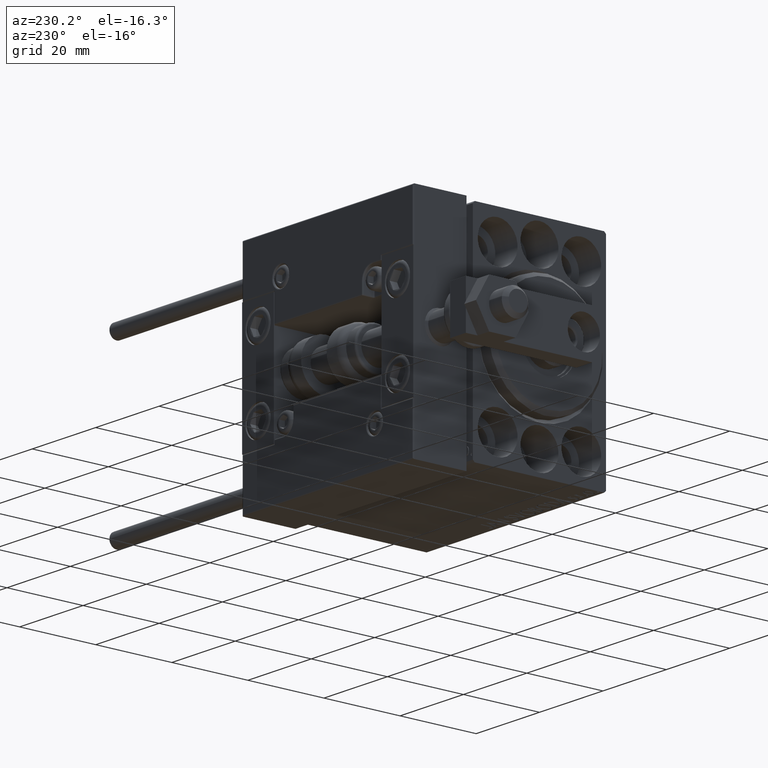
[diagram: clean part render]
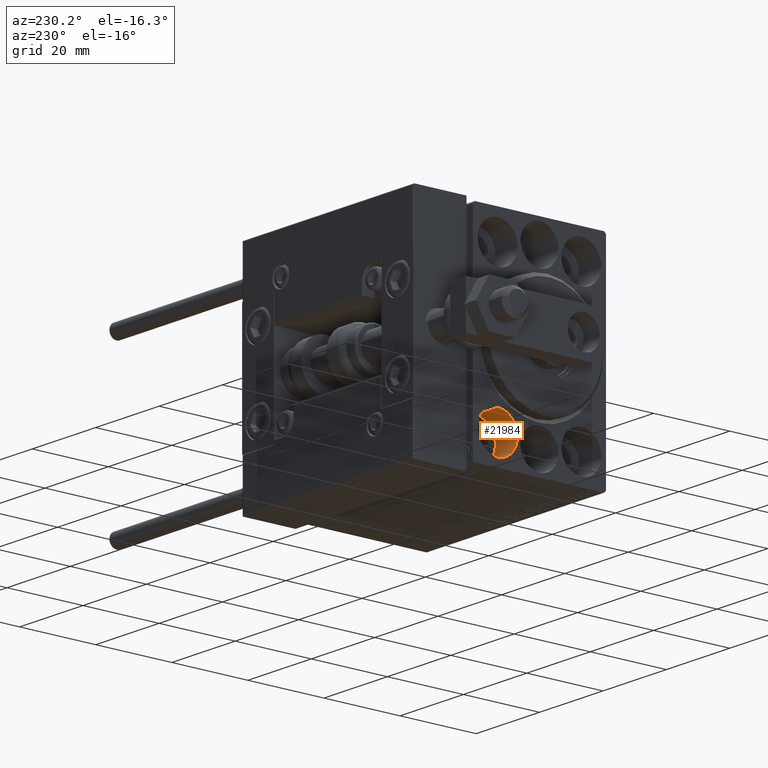
[diagram: same view with one face highlighted and labeled with its STEP entity id]
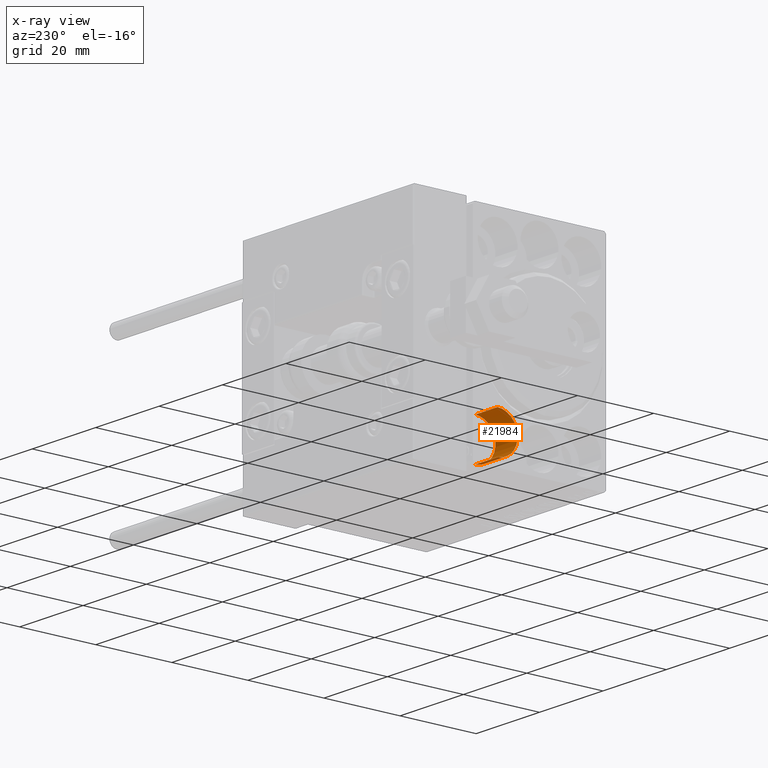
[diagram: x-ray of the same camera — body ghosted, the highlighted face saturated]
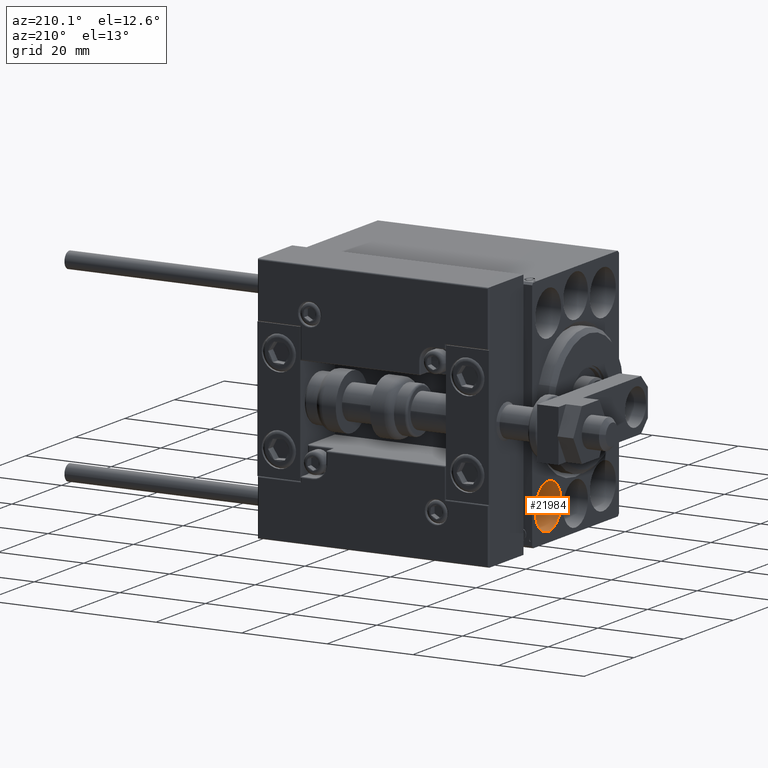
[diagram: same view with one face highlighted and labeled with its STEP entity id]
A machine part, auxiliary view. The second image highlights one B-rep face of the part: STEP entity #21984.
The next image is the same camera in x-ray: the body ghosted, the highlighted face saturated — about 0% of this face is hidden behind the body in this view.
A second angle (auxiliary view) of the same face is appended — the face is thin or edge-on in the first view.
In plain terms, the highlighted cylindrical surface (edge-blend (fillet) strip) has radius 5.25 mm, axis along (-1, -0, -0).
Its self-contained STEP definition (entity closure, byte-faithful):
#1010 = CARTESIAN_POINT ( 'NONE',  ( 7.000000000000000000, 11.00000000000000355, -20.00000000000000000 ) ) ;
#6427 = CARTESIAN_POINT ( 'NONE',  ( 0.000000000000000000, 11.00000000000000355, -20.00000000000000000 ) ) ;
#6558 = EDGE_CURVE ( 'NONE', #49454, #34078, #38046, .T. ) ;
#11633 = ORIENTED_EDGE ( 'NONE', *, *, #28402, .T. ) ;
#12448 = DIRECTION ( 'NONE',  ( -1.000000000000000000, -0.000000000000000000, -0.000000000000000000 ) ) ;
#12738 = VECTOR ( 'NONE', #20463, 1000.000000000000000 ) ;
#13074 = VERTEX_POINT ( 'NONE', #39624 ) ;
#14294 = DIRECTION ( 'NONE',  ( 0.000000000000000000, 0.000000000000000000, 1.000000000000000000 ) ) ;
#14931 = EDGE_LOOP ( 'NONE', ( #20461, #11633, #17421, #44703 ) ) ;
#14967 = CARTESIAN_POINT ( 'NONE',  ( 0.000000000000000000, 11.00000000000000355, -14.75000000000000000 ) ) ;
#16191 = AXIS2_PLACEMENT_3D ( 'NONE', #6427, #29020, #14294 ) ;
#16500 = FACE_OUTER_BOUND ( 'NONE', #14931, .T. ) ;
#17421 = ORIENTED_EDGE ( 'NONE', *, *, #6558, .T. ) ;
#20461 = ORIENTED_EDGE ( 'NONE', *, *, #42262, .F. ) ;
#20463 = DIRECTION ( 'NONE',  ( -1.000000000000000000, -0.000000000000000000, -0.000000000000000000 ) ) ;
#21297 = DIRECTION ( 'NONE',  ( 0.000000000000000000, 0.000000000000000000, 1.000000000000000000 ) ) ;
#21984 = ADVANCED_FACE ( 'NONE', ( #16500 ), #43357, .F. ) ;
#22060 = DIRECTION ( 'NONE',  ( -1.000000000000000000, -0.000000000000000000, -0.000000000000000000 ) ) ;
#28078 = CARTESIAN_POINT ( 'NONE',  ( 7.000000000000000000, 11.00000000000000355, -25.25000000000000000 ) ) ;
#28099 = CIRCLE ( 'NONE', #43459, 5.250000000000000888 ) ;
#28402 = EDGE_CURVE ( 'NONE', #43811, #49454, #39481, .T. ) ;
#28930 = CARTESIAN_POINT ( 'NONE',  ( 7.000000000000000000, 11.00000000000000355, -14.75000000000000000 ) ) ;
#29020 = DIRECTION ( 'NONE',  ( -1.000000000000000000, 0.000000000000000000, 0.000000000000000000 ) ) ;
#34078 = VERTEX_POINT ( 'NONE', #14967 ) ;
#36032 = CARTESIAN_POINT ( 'NONE',  ( 7.000000000000000000, 11.00000000000000355, -20.00000000000000000 ) ) ;
#38046 = CIRCLE ( 'NONE', #16191, 5.250000000000000888 ) ;
#38753 = VECTOR ( 'NONE', #22060, 1000.000000000000000 ) ;
#39481 = LINE ( 'NONE', #28078, #12738 ) ;
#39624 = CARTESIAN_POINT ( 'NONE',  ( 7.000000000000000000, 11.00000000000000355, -14.75000000000000000 ) ) ;
#39830 = DIRECTION ( 'NONE',  ( -1.000000000000000000, 0.000000000000000000, 0.000000000000000000 ) ) ;
#42262 = EDGE_CURVE ( 'NONE', #43811, #13074, #28099, .T. ) ;
#43357 = CYLINDRICAL_SURFACE ( 'NONE', #44860, 5.250000000000000888 ) ;
#43459 = AXIS2_PLACEMENT_3D ( 'NONE', #36032, #39830, #47171 ) ;
#43811 = VERTEX_POINT ( 'NONE', #46556 ) ;
#44703 = ORIENTED_EDGE ( 'NONE', *, *, #47580, .F. ) ;
#44860 = AXIS2_PLACEMENT_3D ( 'NONE', #1010, #12448, #21297 ) ;
#45121 = LINE ( 'NONE', #28930, #38753 ) ;
#46556 = CARTESIAN_POINT ( 'NONE',  ( 7.000000000000000000, 11.00000000000000355, -25.25000000000000000 ) ) ;
#47171 = DIRECTION ( 'NONE',  ( 0.000000000000000000, 0.000000000000000000, 1.000000000000000000 ) ) ;
#47580 = EDGE_CURVE ( 'NONE', #13074, #34078, #45121, .T. ) ;
#48203 = CARTESIAN_POINT ( 'NONE',  ( 0.000000000000000000, 11.00000000000000355, -25.25000000000000000 ) ) ;
#49454 = VERTEX_POINT ( 'NONE', #48203 ) ;